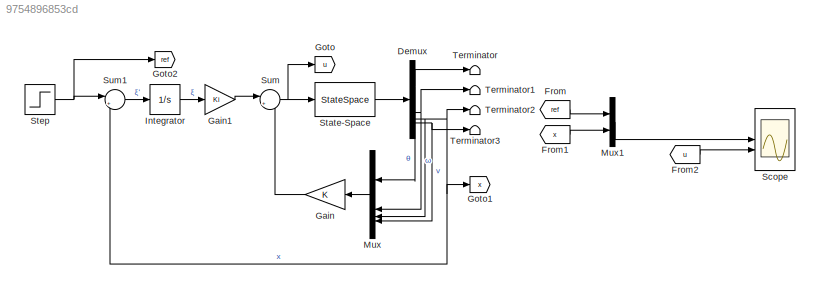
MODEL slx_9754896853cd
KIND model
CONFIG AbsTol = auto
CONFIG EnableMultiTasking = off
CONFIG FixedStep = 0.1
CONFIG MaxStep = auto
CONFIG MinStep = auto
CONFIG RelTol = 1e-3
CONFIG SampleTimeConstraint = Unconstrained
CONFIG SolverName = ode4
CONFIG StartTime = 0.0
CONFIG StopTime = 10.0
BLOCK [Demux] Demux
BLOCK [From] From
  GotoTag = ref
BLOCK [From] From1
  GotoTag = x
BLOCK [From] From2
  GotoTag = u
BLOCK [Gain] Gain
  Gain = K
  Multiplication = Matrix(K*u)
BLOCK [Gain] Gain1
  Gain = Ki
BLOCK [Goto] Goto
  GotoTag = u
BLOCK [Goto] Goto1
  GotoTag = x
BLOCK [Goto] Goto2
  GotoTag = ref
BLOCK [Integrator] Integrator
BLOCK [Mux] Mux
  DisplayOption = bar
BLOCK [Mux] Mux1
  DisplayOption = bar
  Inputs = 2
BLOCK [Scope] Scope
  Floating = off
  NumInputPorts = 2
  ScopeSpecificationString = Simulink.scopes.TimeScopeBlockCfg('CurrentConfiguration', extmgr.ConfigurationSet(extmgr.Configuration('Core','General UI',true),extmgr.Configuration('Core','Source UI',true),extmgr.Configuration('Sources','WiredSimulink',true),extmgr.Configuration('Visuals','Time Domain',true,'SerializedDisplays',{struct('MinYLimReal','-1.33851','MaxYLimReal','1.58057','YLabelReal','','MinYLimMag','0.00000','MaxY...<+2182ch>
BLOCK [StateSpace] State-Space
  A = A
  B = B
  C = eye(4)
  D = zeros(4,1)
  InitialCondition = 0
BLOCK [Step] Step
  SampleTime = 0
  Time = 3
BLOCK [Sum] Sum
  Inputs = |+-
BLOCK [Sum] Sum1
  Inputs = |+-
BLOCK [Terminator] Terminator
BLOCK [Terminator] Terminator1
BLOCK [Terminator] Terminator2
BLOCK [Terminator] Terminator3
NET Demux:1 -> Mux:1, Terminator:1
NET Demux:2 -> Mux:2, Terminator1:1
NET Demux:3 -> Goto1:1, Mux:3, Sum1:2, Terminator2:1
NET Demux:4 -> Mux:4, Terminator3:1
LINE From1:1 -> Mux1:2
LINE From2:1 -> Scope:2
LINE From:1 -> Mux1:1
LINE Gain1:1 -> Sum:1
LINE Gain:1 -> Sum:2
LINE Integrator:1 -> Gain1:1
LINE Mux1:1 -> Scope:1
LINE Mux:1 -> Gain:1
LINE State-Space:1 -> Demux:1
NET Step:1 -> Goto2:1, Sum1:1
LINE Sum1:1 -> Integrator:1
NET Sum:1 -> Goto:1, State-Space:1
note: NET lines group one-source signal fan-out (src -> all destinations, sorted); 1:1 wires keep LINE
